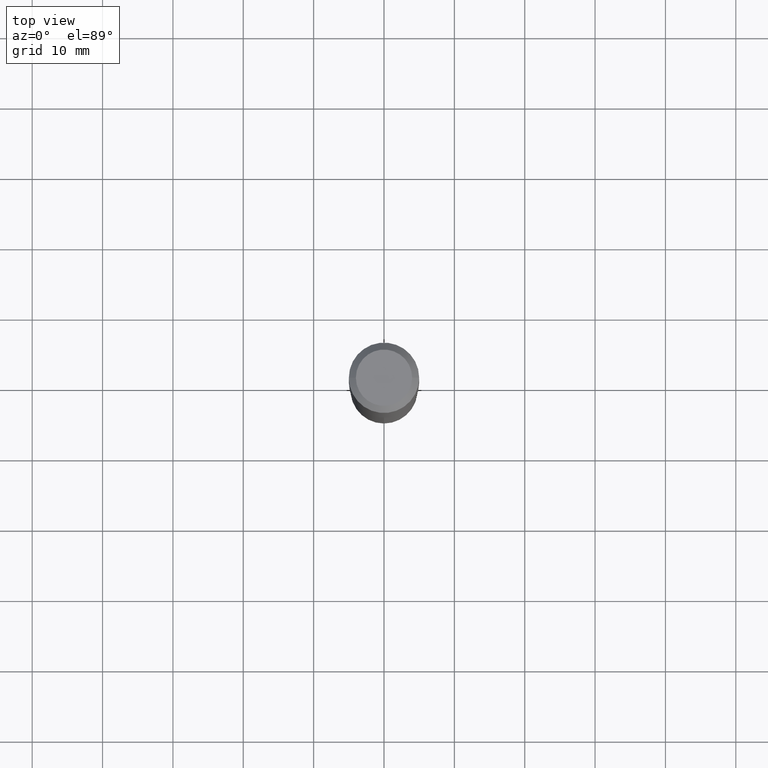
[diagram: clean part render]
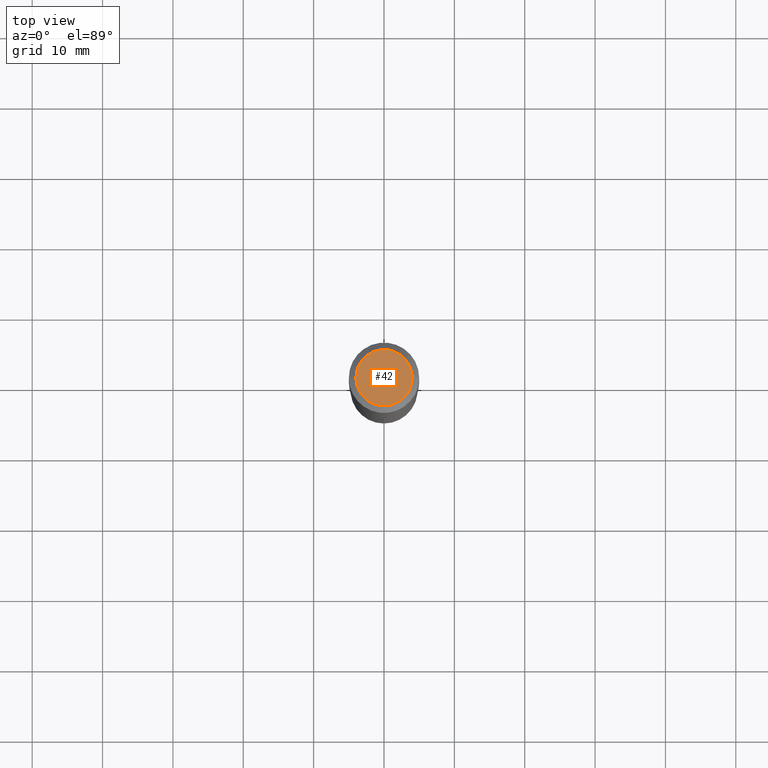
[diagram: same view with one face highlighted and labeled with its STEP entity id]
A machine part, top view. The second image highlights one B-rep face of the part: STEP entity #42.
In plain terms, the highlighted planar face has unit normal (0, -0, -1).
Its self-contained STEP definition (entity closure, byte-faithful):
#41 = DIRECTION ( 'NONE',  ( 1.000000000000000000, -6.982962677686265922E-15, 4.876223630392693006E-29 ) ) ;
#42 = ADVANCED_FACE ( 'NONE', ( #102 ), #160, .F. ) ;
#47 = ORIENTED_EDGE ( 'NONE', *, *, #214, .T. ) ;
#60 = VERTEX_POINT ( 'NONE', #392 ) ;
#62 = VERTEX_POINT ( 'NONE', #277 ) ;
#64 = DIRECTION ( 'NONE',  ( 1.000000000000000000, -6.982962677686265922E-15, 4.876223630392693006E-29 ) ) ;
#102 = FACE_OUTER_BOUND ( 'NONE', #173, .T. ) ;
#123 = CARTESIAN_POINT ( 'NONE',  ( -4.713871149261283817E-47, 6.730158695841841775E-33, 1.927594061857935365E-18 ) ) ;
#126 = DIRECTION ( 'NONE',  ( -1.000000000000000000, 6.982962677686265922E-15, -4.876176775795935793E-29 ) ) ;
#160 = PLANE ( 'NONE',  #457 ) ;
#173 = EDGE_LOOP ( 'NONE', ( #179, #47 ) ) ;
#179 = ORIENTED_EDGE ( 'NONE', *, *, #375, .T. ) ;
#180 = DIRECTION ( 'NONE',  ( -2.445468806185136597E-29, 3.491481338843145583E-15, 1.000000000000000000 ) ) ;
#197 = AXIS2_PLACEMENT_3D ( 'NONE', #308, #268, #41 ) ;
#204 = DIRECTION ( 'NONE',  ( 2.438088387897960049E-29, -3.491481338843145188E-15, -1.000000000000000000 ) ) ;
#214 = EDGE_CURVE ( 'NONE', #62, #60, #291, .T. ) ;
#238 = AXIS2_PLACEMENT_3D ( 'NONE', #377, #180, #64 ) ;
#268 = DIRECTION ( 'NONE',  ( -2.445468806185136597E-29, 3.491481338843145583E-15, 1.000000000000000000 ) ) ;
#277 = CARTESIAN_POINT ( 'NONE',  ( 0.1574800000000000089, -1.284169937930321189E-15, 3.855188123724205385E-18 ) ) ;
#291 = CIRCLE ( 'NONE', #238, 0.1574800000000000089 ) ;
#308 = CARTESIAN_POINT ( 'NONE',  ( -9.427742298522567634E-47, 1.346031739168368355E-32, 3.855188123715870730E-18 ) ) ;
#375 = EDGE_CURVE ( 'NONE', #60, #62, #410, .T. ) ;
#377 = CARTESIAN_POINT ( 'NONE',  ( -9.427742298522567634E-47, 1.346031739168368355E-32, 3.855188123715870730E-18 ) ) ;
#392 = CARTESIAN_POINT ( 'NONE',  ( -0.1574800000000000089, 1.168406772637159618E-15, 3.855188123707939751E-18 ) ) ;
#410 = CIRCLE ( 'NONE', #197, 0.1574800000000000089 ) ;
#457 = AXIS2_PLACEMENT_3D ( 'NONE', #123, #204, #126 ) ;